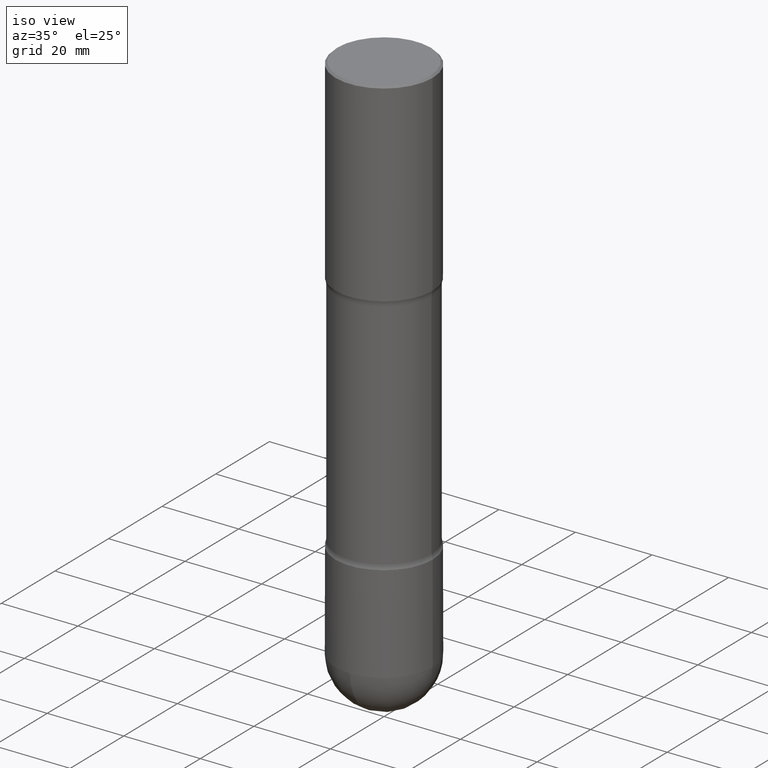
[diagram: clean part render]
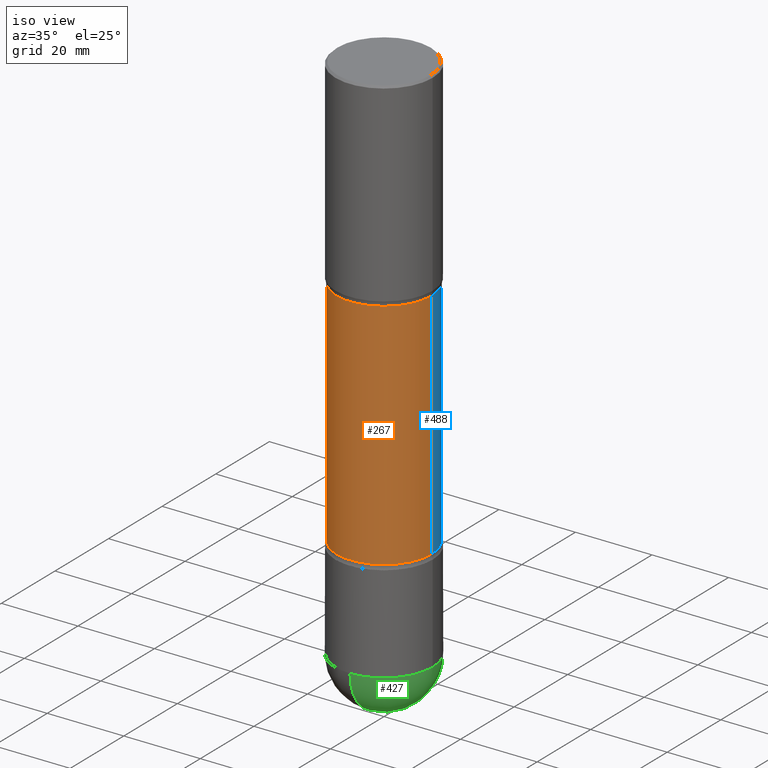
[diagram: same view with three faces highlighted in distinct colors, each labeled with its STEP entity id]
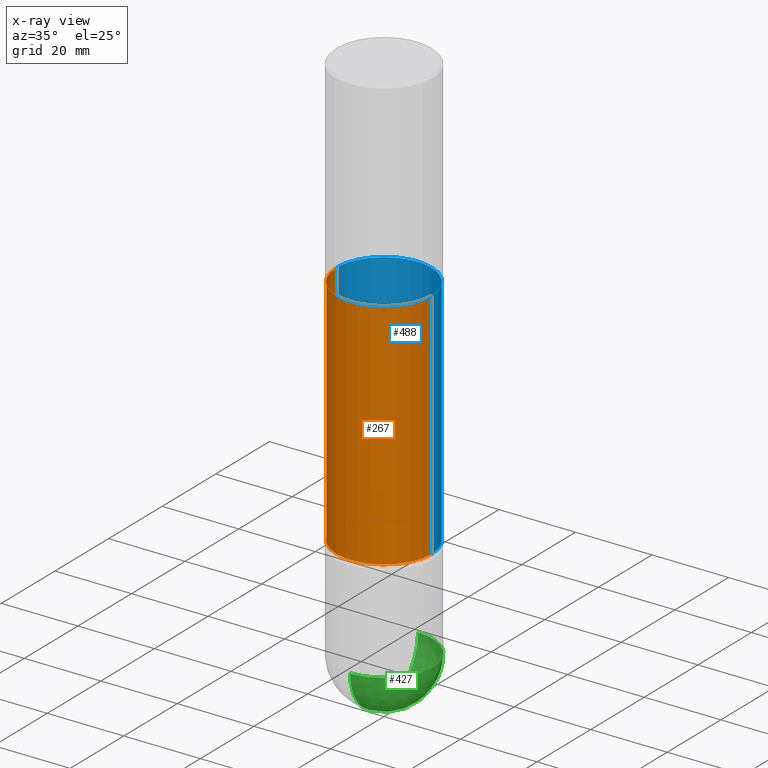
[diagram: x-ray of the same camera — body ghosted, the three highlighted faces saturated]
A machine part, iso view with three faces highlighted in distinct colors.
The next image is the same camera in x-ray (body ghosted, the three faces saturated) — at least one of them is partly hidden behind the body in this view.
Their STEP definitions:

[orange] entity #267 — the highlighted cylindrical surface (partial cylindrical patch) has radius 12.446 mm, axis along (0, -0, -1).
#15 = EDGE_CURVE ( 'NONE', #564, #408, #177, .T. ) ;
#21 = VECTOR ( 'NONE', #222, 39.37007874015748143 ) ;
#42 = DIRECTION ( 'NONE',  ( 2.445468806185136877E-29, -3.491481338843145188E-15, -1.000000000000000000 ) ) ;
#56 = CARTESIAN_POINT ( 'NONE',  ( 1.100460962783311693E-28, -1.571166602479415690E-14, -4.500000000000000888 ) ) ;
#81 = DIRECTION ( 'NONE',  ( -1.000000000000000000, 6.982962677686265922E-15, 0.000000000000000000 ) ) ;
#82 = DIRECTION ( 'NONE',  ( 2.445468806185136597E-29, -3.491481338843145583E-15, -1.000000000000000000 ) ) ;
#101 = ORIENTED_EDGE ( 'NONE', *, *, #133, .F. ) ;
#104 = DIRECTION ( 'NONE',  ( 2.445468806185136597E-29, -3.491481338843145583E-15, -1.000000000000000000 ) ) ;
#131 = ORIENTED_EDGE ( 'NONE', *, *, #204, .F. ) ;
#133 = EDGE_CURVE ( 'NONE', #525, #490, #477, .T. ) ;
#136 = CIRCLE ( 'NONE', #201, 0.4899999999999997691 ) ;
#149 = CARTESIAN_POINT ( 'NONE',  ( -0.4899999999999995470, -1.229001431272789000E-14, -4.500000000000000888 ) ) ;
#175 = DIRECTION ( 'NONE',  ( 2.445468806185136597E-29, -3.491481338843145583E-15, -1.000000000000000000 ) ) ;
#177 = LINE ( 'NONE', #149, #21 ) ;
#201 = AXIS2_PLACEMENT_3D ( 'NONE', #431, #82, #438 ) ;
#204 = EDGE_CURVE ( 'NONE', #490, #408, #136, .T. ) ;
#222 = DIRECTION ( 'NONE',  ( 2.445468806185136877E-29, -3.491481338843145188E-15, -1.000000000000000000 ) ) ;
#232 = DIRECTION ( 'NONE',  ( -1.000000000000000000, 6.982962677686267499E-15, 0.000000000000000000 ) ) ;
#234 = EDGE_LOOP ( 'NONE', ( #101, #243, #513, #131 ) ) ;
#243 = ORIENTED_EDGE ( 'NONE', *, *, #562, .T. ) ;
#252 = CARTESIAN_POINT ( 'NONE',  ( 0.4899999999999995470, -1.907331004370220774E-14, -4.500000000000000888 ) ) ;
#258 = CARTESIAN_POINT ( 'NONE',  ( -0.4899999999999994360, -3.732357920152330765E-15, -2.048989794855664126 ) ) ;
#266 = CARTESIAN_POINT ( 'NONE',  ( 0.4899999999999994360, -1.046443266384935312E-14, -2.048989794855664126 ) ) ;
#267 = ADVANCED_FACE ( 'NONE', ( #306 ), #491, .T. ) ;
#285 = CIRCLE ( 'NONE', #369, 0.4899999999999994360 ) ;
#306 = FACE_OUTER_BOUND ( 'NONE', #234, .T. ) ;
#332 = AXIS2_PLACEMENT_3D ( 'NONE', #56, #104, #232 ) ;
#351 = CARTESIAN_POINT ( 'NONE',  ( -0.4899999999999997691, -1.211896735819558586E-14, -4.451010205144337206 ) ) ;
#362 = CARTESIAN_POINT ( 'NONE',  ( 0.4899999999999997691, -1.470895837014827211E-14, -4.451010205144337206 ) ) ;
#369 = AXIS2_PLACEMENT_3D ( 'NONE', #486, #175, #81 ) ;
#408 = VERTEX_POINT ( 'NONE', #351 ) ;
#424 = VECTOR ( 'NONE', #42, 39.37007874015748143 ) ;
#431 = CARTESIAN_POINT ( 'NONE',  ( 1.088480661269218183E-28, -1.554061907026185434E-14, -4.451010205144337206 ) ) ;
#438 = DIRECTION ( 'NONE',  ( -1.000000000000000000, 6.982962677686264344E-15, 0.000000000000000000 ) ) ;
#477 = LINE ( 'NONE', #252, #424 ) ;
#486 = CARTESIAN_POINT ( 'NONE',  ( 5.010740627511209416E-29, -7.154009632218597667E-15, -2.048989794855664126 ) ) ;
#490 = VERTEX_POINT ( 'NONE', #362 ) ;
#491 = CYLINDRICAL_SURFACE ( 'NONE', #332, 0.4899999999999995470 ) ;
#513 = ORIENTED_EDGE ( 'NONE', *, *, #15, .T. ) ;
#525 = VERTEX_POINT ( 'NONE', #266 ) ;
#562 = EDGE_CURVE ( 'NONE', #525, #564, #285, .T. ) ;
#564 = VERTEX_POINT ( 'NONE', #258 ) ;

[blue] entity #488 — the highlighted cylindrical surface (partial cylindrical patch) has radius 12.446 mm, axis along (0, -0, -1).
#15 = EDGE_CURVE ( 'NONE', #564, #408, #177, .T. ) ;
#21 = VECTOR ( 'NONE', #222, 39.37007874015748143 ) ;
#38 = DIRECTION ( 'NONE',  ( 2.445468806185136597E-29, -3.491481338843145583E-15, -1.000000000000000000 ) ) ;
#42 = DIRECTION ( 'NONE',  ( 2.445468806185136877E-29, -3.491481338843145188E-15, -1.000000000000000000 ) ) ;
#46 = CARTESIAN_POINT ( 'NONE',  ( 1.100460962783311693E-28, -1.571166602479415690E-14, -4.500000000000000888 ) ) ;
#62 = DIRECTION ( 'NONE',  ( -1.000000000000000000, 6.982962677686267499E-15, 0.000000000000000000 ) ) ;
#67 = AXIS2_PLACEMENT_3D ( 'NONE', #46, #227, #62 ) ;
#114 = AXIS2_PLACEMENT_3D ( 'NONE', #162, #38, #166 ) ;
#122 = DIRECTION ( 'NONE',  ( -1.000000000000000000, 6.982962677686264344E-15, 0.000000000000000000 ) ) ;
#133 = EDGE_CURVE ( 'NONE', #525, #490, #477, .T. ) ;
#149 = CARTESIAN_POINT ( 'NONE',  ( -0.4899999999999995470, -1.229001431272789000E-14, -4.500000000000000888 ) ) ;
#162 = CARTESIAN_POINT ( 'NONE',  ( 5.010740627511209416E-29, -7.154009632218597667E-15, -2.048989794855664126 ) ) ;
#166 = DIRECTION ( 'NONE',  ( -1.000000000000000000, 6.982962677686265922E-15, 0.000000000000000000 ) ) ;
#169 = EDGE_CURVE ( 'NONE', #408, #490, #560, .T. ) ;
#177 = LINE ( 'NONE', #149, #21 ) ;
#222 = DIRECTION ( 'NONE',  ( 2.445468806185136877E-29, -3.491481338843145188E-15, -1.000000000000000000 ) ) ;
#227 = DIRECTION ( 'NONE',  ( 2.445468806185136597E-29, -3.491481338843145583E-15, -1.000000000000000000 ) ) ;
#228 = ORIENTED_EDGE ( 'NONE', *, *, #247, .T. ) ;
#247 = EDGE_CURVE ( 'NONE', #564, #525, #354, .T. ) ;
#252 = CARTESIAN_POINT ( 'NONE',  ( 0.4899999999999995470, -1.907331004370220774E-14, -4.500000000000000888 ) ) ;
#253 = CARTESIAN_POINT ( 'NONE',  ( 1.088480661269218183E-28, -1.554061907026185434E-14, -4.451010205144337206 ) ) ;
#258 = CARTESIAN_POINT ( 'NONE',  ( -0.4899999999999994360, -3.732357920152330765E-15, -2.048989794855664126 ) ) ;
#266 = CARTESIAN_POINT ( 'NONE',  ( 0.4899999999999994360, -1.046443266384935312E-14, -2.048989794855664126 ) ) ;
#308 = AXIS2_PLACEMENT_3D ( 'NONE', #253, #339, #122 ) ;
#339 = DIRECTION ( 'NONE',  ( 2.445468806185136597E-29, -3.491481338843145583E-15, -1.000000000000000000 ) ) ;
#351 = CARTESIAN_POINT ( 'NONE',  ( -0.4899999999999997691, -1.211896735819558586E-14, -4.451010205144337206 ) ) ;
#354 = CIRCLE ( 'NONE', #114, 0.4899999999999994360 ) ;
#356 = CYLINDRICAL_SURFACE ( 'NONE', #67, 0.4899999999999995470 ) ;
#362 = CARTESIAN_POINT ( 'NONE',  ( 0.4899999999999997691, -1.470895837014827211E-14, -4.451010205144337206 ) ) ;
#408 = VERTEX_POINT ( 'NONE', #351 ) ;
#424 = VECTOR ( 'NONE', #42, 39.37007874015748143 ) ;
#461 = FACE_OUTER_BOUND ( 'NONE', #479, .T. ) ;
#477 = LINE ( 'NONE', #252, #424 ) ;
#479 = EDGE_LOOP ( 'NONE', ( #228, #566, #550, #504 ) ) ;
#488 = ADVANCED_FACE ( 'NONE', ( #461 ), #356, .T. ) ;
#490 = VERTEX_POINT ( 'NONE', #362 ) ;
#504 = ORIENTED_EDGE ( 'NONE', *, *, #15, .F. ) ;
#525 = VERTEX_POINT ( 'NONE', #266 ) ;
#550 = ORIENTED_EDGE ( 'NONE', *, *, #169, .F. ) ;
#560 = CIRCLE ( 'NONE', #308, 0.4899999999999997691 ) ;
#564 = VERTEX_POINT ( 'NONE', #258 ) ;
#566 = ORIENTED_EDGE ( 'NONE', *, *, #133, .T. ) ;

[green] entity #427 — the highlighted spherical surface has radius 12.7 mm.
#2 = DIRECTION ( 'NONE',  ( 1.000000000000000000, -6.982962677686265922E-15, 4.883557194083112340E-29 ) ) ;
#10 = VERTEX_POINT ( 'NONE', #137 ) ;
#55 = CIRCLE ( 'NONE', #213, 0.4999999999999987788 ) ;
#58 = DIRECTION ( 'NONE',  ( -1.000000000000000000, 6.982962677686265922E-15, -4.883557194083112901E-29 ) ) ;
#87 = AXIS2_PLACEMENT_3D ( 'NONE', #140, #274, #260 ) ;
#115 = EDGE_CURVE ( 'NONE', #10, #195, #474, .T. ) ;
#121 = CARTESIAN_POINT ( 'NONE',  ( 1.345007843401825128E-28, -1.920314736363730603E-14, -5.500000000000000888 ) ) ;
#127 = VERTEX_POINT ( 'NONE', #533 ) ;
#130 = DIRECTION ( 'NONE',  ( -2.445468806185136597E-29, 3.491481338843145583E-15, 1.000000000000000000 ) ) ;
#137 = CARTESIAN_POINT ( 'NONE',  ( -3.552713678800358146E-15, -0.5000000000000182077, -5.499999999999999112 ) ) ;
#140 = CARTESIAN_POINT ( 'NONE',  ( 1.340732011955928297E-28, -1.926437970359467045E-14, -5.500000000000000888 ) ) ;
#141 = ORIENTED_EDGE ( 'NONE', *, *, #224, .F. ) ;
#171 = DIRECTION ( 'NONE',  ( -2.445468806185136597E-29, 3.491481338843145583E-15, 1.000000000000000000 ) ) ;
#176 = CARTESIAN_POINT ( 'NONE',  ( 1.345007843401825128E-28, -1.920314736363730603E-14, -5.500000000000000888 ) ) ;
#190 = CARTESIAN_POINT ( 'NONE',  ( 1.340732011955928297E-28, -1.926437970359467045E-14, -5.500000000000000888 ) ) ;
#191 = ORIENTED_EDGE ( 'NONE', *, *, #211, .T. ) ;
#194 = ORIENTED_EDGE ( 'NONE', *, *, #115, .F. ) ;
#195 = VERTEX_POINT ( 'NONE', #387 ) ;
#206 = AXIS2_PLACEMENT_3D ( 'NONE', #176, #171, #301 ) ;
#210 = EDGE_LOOP ( 'NONE', ( #557, #191, #141, #194 ) ) ;
#211 = EDGE_CURVE ( 'NONE', #317, #127, #55, .T. ) ;
#213 = AXIS2_PLACEMENT_3D ( 'NONE', #296, #2, #251 ) ;
#215 = DIRECTION ( 'NONE',  ( 1.000000000000000000, -6.982962677686268288E-15, 0.000000000000000000 ) ) ;
#224 = EDGE_CURVE ( 'NONE', #195, #127, #466, .T. ) ;
#226 = CARTESIAN_POINT ( 'NONE',  ( 1.465143367988133318E-28, -2.097950420303755649E-14, -5.999999999999999112 ) ) ;
#251 = DIRECTION ( 'NONE',  ( 6.982962677686265922E-15, 1.000000000000000000, 0.000000000000000000 ) ) ;
#260 = DIRECTION ( 'NONE',  ( -7.105427357601001070E-15, -1.000000000000000000, 0.000000000000000000 ) ) ;
#274 = DIRECTION ( 'NONE',  ( -1.000000000000000000, 7.105427357601001070E-15, -4.926315508542082329E-29 ) ) ;
#276 = DIRECTION ( 'NONE',  ( 6.982962677686265922E-15, 1.000000000000000000, -4.370956789862832194E-15 ) ) ;
#296 = CARTESIAN_POINT ( 'NONE',  ( 1.340732011955928297E-28, -1.926437970359467045E-14, -5.500000000000000888 ) ) ;
#297 = AXIS2_PLACEMENT_3D ( 'NONE', #121, #130, #215 ) ;
#301 = DIRECTION ( 'NONE',  ( 1.000000000000000000, -6.982962677686268288E-15, 0.000000000000000000 ) ) ;
#316 = FACE_OUTER_BOUND ( 'NONE', #210, .T. ) ;
#317 = VERTEX_POINT ( 'NONE', #226 ) ;
#337 = EDGE_CURVE ( 'NONE', #317, #10, #347, .T. ) ;
#347 = CIRCLE ( 'NONE', #87, 0.4999999999999987788 ) ;
#387 = CARTESIAN_POINT ( 'NONE',  ( 0.4999999999999990563, -2.094888803305886324E-14, -5.500000000000000888 ) ) ;
#390 = AXIS2_PLACEMENT_3D ( 'NONE', #190, #58, #276 ) ;
#427 = ADVANCED_FACE ( 'NONE', ( #316 ), #494, .T. ) ;
#466 = CIRCLE ( 'NONE', #206, 0.4999999999999990563 ) ;
#474 = CIRCLE ( 'NONE', #297, 0.4999999999999990563 ) ;
#494 = SPHERICAL_SURFACE ( 'NONE', #390, 0.4999999999999987788 ) ;
#533 = CARTESIAN_POINT ( 'NONE',  ( 3.491481338843259573E-15, 0.4999999999999796274, -5.500000000000002665 ) ) ;
#557 = ORIENTED_EDGE ( 'NONE', *, *, #337, .F. ) ;